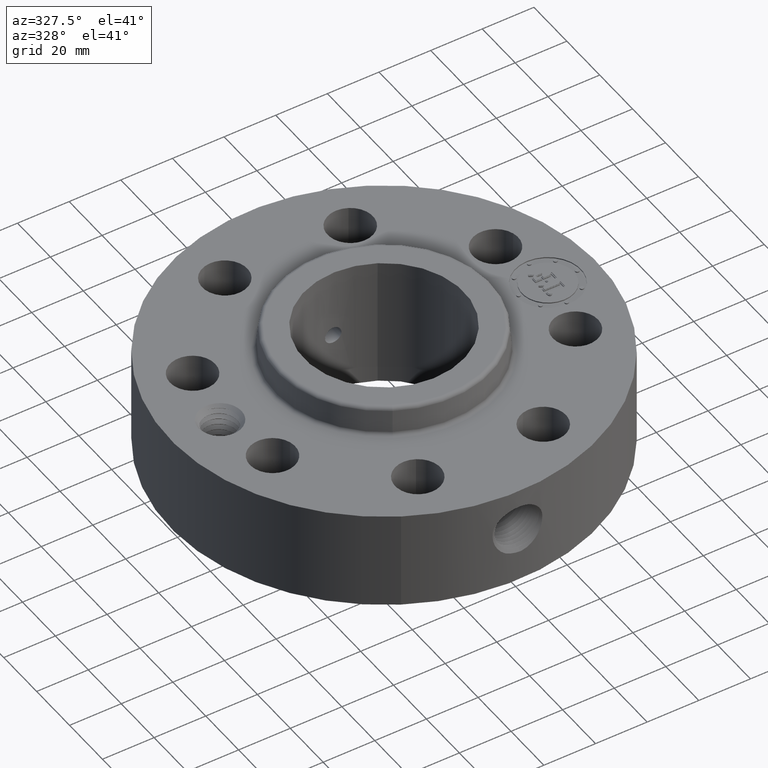
[diagram: clean part render]
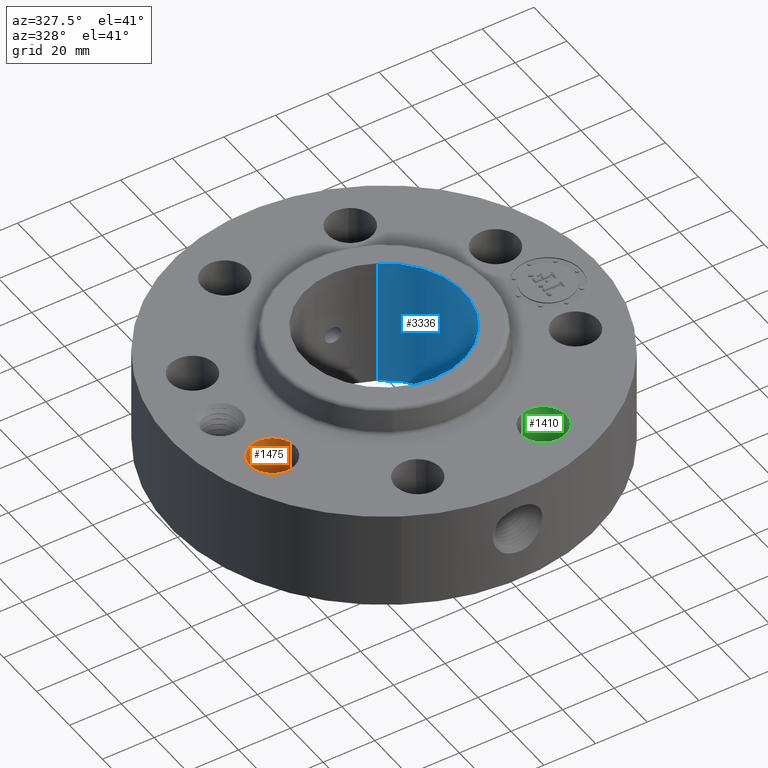
[diagram: same view with three faces highlighted in distinct colors, each labeled with its STEP entity id]
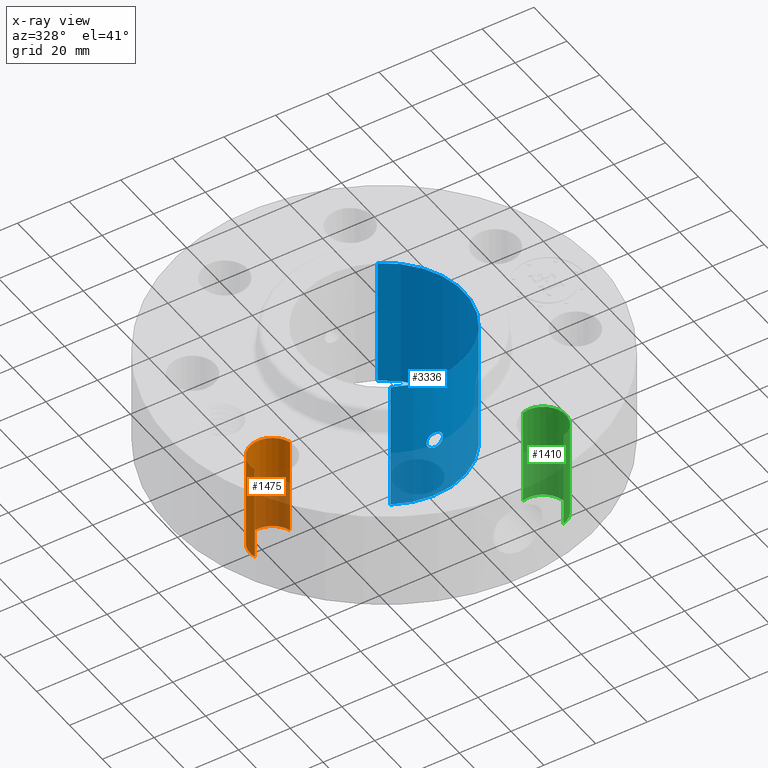
[diagram: x-ray of the same camera — body ghosted, the three highlighted faces saturated]
A machine part, auxiliary view with three faces highlighted in distinct colors.
The next image is the same camera in x-ray (body ghosted, the three faces saturated) — at least one of them is partly hidden behind the body in this view.
Their STEP definitions:

[orange] entity #1475 — the highlighted cylindrical surface (edge-blend (fillet) strip) has radius 8.763 mm, axis along (-0, 0, -1).
#319=AXIS2_PLACEMENT_3D('Circle Axis2P3D',#317,#318,$) ;
#641=AXIS2_PLACEMENT_3D('Circle Axis2P3D',#639,#640,$) ;
#1450=AXIS2_PLACEMENT_3D('Cylinder Axis2P3D',#1447,#1448,#1449) ;
#312=CARTESIAN_POINT('Vertex',(-1.97865420894,-0.859577442672,0.0600000000002)) ;
#314=CARTESIAN_POINT('Vertex',(-2.64074345363,-1.05383971916,0.0600000000002)) ;
#317=CARTESIAN_POINT('Axis2P3D Location',(-2.30969883129,-0.956708580917,0.0600000000002)) ;
#639=CARTESIAN_POINT('Axis2P3D Location',(-2.30969883129,-0.956708580917,1.56000000001)) ;
#643=CARTESIAN_POINT('Vertex',(-2.64074345363,-1.05383971916,1.56000000001)) ;
#645=CARTESIAN_POINT('Vertex',(-1.97865420894,-0.859577442672,1.56000000001)) ;
#1447=CARTESIAN_POINT('Axis2P3D Location',(-2.30969883129,-0.956708580917,1.55606299213)) ;
#1452=CARTESIAN_POINT('Line Origine',(-1.97865420894,-0.859577442672,0.810000000003)) ;
#1457=CARTESIAN_POINT('Line Origine',(-2.64074345363,-1.05383971916,0.810000000003)) ;
#318=DIRECTION('Axis2P3D Direction',(0.,0.,-0.0393700787402)) ;
#640=DIRECTION('Axis2P3D Direction',(0.,0.,-0.0393700787402)) ;
#1448=DIRECTION('Axis2P3D Direction',(-0.,0.,-0.0393700787402)) ;
#1449=DIRECTION('Axis2P3D XDirection',(-0.0377775444876,-0.0110842335096,0.)) ;
#1453=DIRECTION('Vector Direction',(0.,0.,-0.0393700787402)) ;
#1458=DIRECTION('Vector Direction',(0.,0.,-0.0393700787402)) ;
#1454=VECTOR('Line Direction',#1453,0.0393700787402) ;
#1459=VECTOR('Line Direction',#1458,0.0393700787402) ;
#1470=ORIENTED_EDGE('',*,*,#1461,.F.) ;
#1471=ORIENTED_EDGE('',*,*,#321,.T.) ;
#1472=ORIENTED_EDGE('',*,*,#1456,.T.) ;
#1473=ORIENTED_EDGE('',*,*,#647,.F.) ;
#1475=ADVANCED_FACE('PartBody',(#1474),#1451,.F.) ;
#320=CIRCLE('generated circle',#319,0.345000000001) ;
#642=CIRCLE('generated circle',#641,0.345000000001) ;
#1451=CYLINDRICAL_SURFACE('generated cylinder',#1450,0.345000000001) ;
#321=EDGE_CURVE('',#315,#313,#320,.T.) ;
#647=EDGE_CURVE('',#644,#646,#642,.T.) ;
#1456=EDGE_CURVE('',#313,#646,#1455,.F.) ;
#1461=EDGE_CURVE('',#315,#644,#1460,.F.) ;
#1469=EDGE_LOOP('',(#1470,#1471,#1472,#1473)) ;
#1474=FACE_OUTER_BOUND('',#1469,.T.) ;
#1455=LINE('Line',#1452,#1454) ;
#1460=LINE('Line',#1457,#1459) ;
#313=VERTEX_POINT('',#312) ;
#315=VERTEX_POINT('',#314) ;
#644=VERTEX_POINT('',#643) ;
#646=VERTEX_POINT('',#645) ;

[blue] entity #3336 — the highlighted cylindrical surface (partial cylindrical patch) has radius 30.988 mm, axis along (0, 0, -1).
#2504=AXIS2_PLACEMENT_3D('Circle Axis2P3D',#2502,#2503,$) ;
#3267=AXIS2_PLACEMENT_3D('Cylinder Axis2P3D',#3264,#3265,#3266) ;
#3271=AXIS2_PLACEMENT_3D('Circle Axis2P3D',#3269,#3270,$) ;
#2502=CARTESIAN_POINT('Axis2P3D Location',(0.,0.,0.)) ;
#2506=CARTESIAN_POINT('Vertex',(0.584899157099,1.07065072551,-6.2941777774E-015)) ;
#2508=CARTESIAN_POINT('Vertex',(-0.584899157099,-1.07065072551,-6.2941777774E-015)) ;
#3264=CARTESIAN_POINT('Axis2P3D Location',(0.,0.,1.)) ;
#3269=CARTESIAN_POINT('Axis2P3D Location',(0.,0.,2.00000000001)) ;
#3273=CARTESIAN_POINT('Vertex',(0.584899157099,1.07065072551,2.00000000001)) ;
#3275=CARTESIAN_POINT('Vertex',(-0.584899157099,-1.07065072551,2.00000000001)) ;
#3278=CARTESIAN_POINT('Line Origine',(0.584899157099,1.07065072551,1.)) ;
#3283=CARTESIAN_POINT('Line Origine',(-0.584899157099,-1.07065072551,1.)) ;
#3295=CARTESIAN_POINT('Control Point',(0.109697820237,-1.21505818307,0.880071807678)) ;
#3296=CARTESIAN_POINT('Control Point',(0.103060798097,-1.21565738636,0.867922820142)) ;
#3297=CARTESIAN_POINT('Control Point',(0.0947441160471,-1.21636254643,0.856696685274)) ;
#3298=CARTESIAN_POINT('Control Point',(0.0849166975474,-1.21711226691,0.846699228366)) ;
#3299=CARTESIAN_POINT('Control Point',(0.0516807941177,-1.21924473494,0.821182243796)) ;
#3300=CARTESIAN_POINT('Control Point',(0.00988752888291,-1.22047165248,0.810629364221)) ;
#3301=CARTESIAN_POINT('Control Point',(-0.0193471049442,-1.22034038384,0.81170559755)) ;
#3302=CARTESIAN_POINT('Control Point',(-0.0602691930453,-1.21881882078,0.825296047899)) ;
#3303=CARTESIAN_POINT('Control Point',(-0.091558204265,-1.21662182462,0.853201221482)) ;
#3304=CARTESIAN_POINT('Control Point',(-0.10063986189,-1.21588023015,0.863916524683)) ;
#3305=CARTESIAN_POINT('Control Point',(-0.120588705496,-1.21410136686,0.895486558274)) ;
#3306=CARTESIAN_POINT('Control Point',(-0.128081421877,-1.21324760795,0.932742917356)) ;
#3307=CARTESIAN_POINT('Control Point',(-0.127185528613,-1.21335185451,0.956760797276)) ;
#3308=CARTESIAN_POINT('Control Point',(-0.120785558709,-1.21405716044,0.979632223195)) ;
#3309=CARTESIAN_POINT('Control Point',(-0.109697820237,-1.21505818307,0.99992819233)) ;
#3310=CARTESIAN_POINT('Vertex',(0.109697820237,-1.21505818307,0.880071807678)) ;
#3312=CARTESIAN_POINT('Vertex',(-0.109697820237,-1.21505818307,0.99992819233)) ;
#3316=CARTESIAN_POINT('Control Point',(-0.109697820237,-1.21505818307,0.99992819233)) ;
#3317=CARTESIAN_POINT('Control Point',(-0.103060798097,-1.21565738636,1.01207717987)) ;
#3318=CARTESIAN_POINT('Control Point',(-0.0947441160466,-1.21636254643,1.02330331473)) ;
#3319=CARTESIAN_POINT('Control Point',(-0.084916697548,-1.21711226691,1.03330077164)) ;
#3320=CARTESIAN_POINT('Control Point',(-0.0516807941182,-1.21924473494,1.05881775621)) ;
#3321=CARTESIAN_POINT('Control Point',(-0.00988752888294,-1.22047165248,1.06937063579)) ;
#3322=CARTESIAN_POINT('Control Point',(0.0193471049444,-1.22034038384,1.06829440246)) ;
#3323=CARTESIAN_POINT('Control Point',(0.0602691930475,-1.21881882078,1.05470395211)) ;
#3324=CARTESIAN_POINT('Control Point',(0.0915582042682,-1.21662182462,1.02679877852)) ;
#3325=CARTESIAN_POINT('Control Point',(0.100639861887,-1.21588023015,1.01608347533)) ;
#3326=CARTESIAN_POINT('Control Point',(0.120588705492,-1.21410136686,0.984513441743)) ;
#3327=CARTESIAN_POINT('Control Point',(0.128081421874,-1.21324760795,0.947257082666)) ;
#3328=CARTESIAN_POINT('Control Point',(0.127185528608,-1.21335185451,0.923239202716)) ;
#3329=CARTESIAN_POINT('Control Point',(0.120785558705,-1.21405716044,0.900367776806)) ;
#3330=CARTESIAN_POINT('Control Point',(0.109697820237,-1.21505818307,0.880071807678)) ;
#2503=DIRECTION('Axis2P3D Direction',(0.,0.,-0.0393700787402)) ;
#3265=DIRECTION('Axis2P3D Direction',(0.,0.,-0.0393700787402)) ;
#3266=DIRECTION('Axis2P3D XDirection',(-0.0188750212049,-0.0345504945626,0.)) ;
#3270=DIRECTION('Axis2P3D Direction',(0.,0.,-0.0393700787402)) ;
#3279=DIRECTION('Vector Direction',(0.,0.,-0.0393700787402)) ;
#3284=DIRECTION('Vector Direction',(0.,0.,-0.0393700787402)) ;
#3280=VECTOR('Line Direction',#3279,0.0393700787402) ;
#3285=VECTOR('Line Direction',#3284,0.0393700787402) ;
#3289=ORIENTED_EDGE('',*,*,#3277,.F.) ;
#3290=ORIENTED_EDGE('',*,*,#3282,.T.) ;
#3291=ORIENTED_EDGE('',*,*,#2510,.T.) ;
#3292=ORIENTED_EDGE('',*,*,#3287,.F.) ;
#3333=ORIENTED_EDGE('',*,*,#3314,.F.) ;
#3334=ORIENTED_EDGE('',*,*,#3331,.F.) ;
#3335=FACE_BOUND('',#3332,.T.) ;
#3336=ADVANCED_FACE('PartBody',(#3293,#3335),#3268,.F.) ;
#3294=B_SPLINE_CURVE_WITH_KNOTS('',5,(#3295,#3296,#3297,#3298,#3299,#3300,#3301,#3302,#3303,#3304,#3305,#3306,#3307,#3308,#3309),.UNSPECIFIED.,.F.,.U.,(6,3,3,3,6),(0.,2.4887269812,7.46422653684,9.95758842031,14.1152291987),.UNSPECIFIED.) ;
#3315=B_SPLINE_CURVE_WITH_KNOTS('',5,(#3316,#3317,#3318,#3319,#3320,#3321,#3322,#3323,#3324,#3325,#3326,#3327,#3328,#3329,#3330),.UNSPECIFIED.,.F.,.U.,(6,3,3,3,6),(0.,2.48872698128,7.46422653689,9.95758842075,14.1152291977),.UNSPECIFIED.) ;
#2505=CIRCLE('generated circle',#2504,1.22) ;
#3272=CIRCLE('generated circle',#3271,1.22) ;
#3268=CYLINDRICAL_SURFACE('generated cylinder',#3267,1.22) ;
#2510=EDGE_CURVE('',#2507,#2509,#2505,.T.) ;
#3277=EDGE_CURVE('',#3274,#3276,#3272,.T.) ;
#3282=EDGE_CURVE('',#3274,#2507,#3281,.T.) ;
#3287=EDGE_CURVE('',#3276,#2509,#3286,.T.) ;
#3314=EDGE_CURVE('',#3311,#3313,#3294,.T.) ;
#3331=EDGE_CURVE('',#3313,#3311,#3315,.T.) ;
#3288=EDGE_LOOP('',(#3289,#3290,#3291,#3292)) ;
#3332=EDGE_LOOP('',(#3333,#3334)) ;
#3293=FACE_OUTER_BOUND('',#3288,.T.) ;
#3281=LINE('Line',#3278,#3280) ;
#3286=LINE('Line',#3283,#3285) ;
#2507=VERTEX_POINT('',#2506) ;
#2509=VERTEX_POINT('',#2508) ;
#3274=VERTEX_POINT('',#3273) ;
#3276=VERTEX_POINT('',#3275) ;
#3311=VERTEX_POINT('',#3310) ;
#3313=VERTEX_POINT('',#3312) ;

[green] entity #1410 — the highlighted cylindrical surface (edge-blend (fillet) strip) has radius 8.763 mm, axis along (0, -0, -1).
#274=AXIS2_PLACEMENT_3D('Circle Axis2P3D',#272,#273,$) ;
#614=AXIS2_PLACEMENT_3D('Circle Axis2P3D',#612,#613,$) ;
#1392=AXIS2_PLACEMENT_3D('Cylinder Axis2P3D',#1389,#1390,#1391) ;
#272=CARTESIAN_POINT('Axis2P3D Location',(0.956708580917,-2.30969883129,0.0600000000002)) ;
#276=CARTESIAN_POINT('Vertex',(0.859577442672,-1.97865420894,0.0600000000002)) ;
#278=CARTESIAN_POINT('Vertex',(1.05383971916,-2.64074345363,0.0600000000002)) ;
#607=CARTESIAN_POINT('Vertex',(1.05383971916,-2.64074345363,1.56000000001)) ;
#609=CARTESIAN_POINT('Vertex',(0.859577442672,-1.97865420894,1.56000000001)) ;
#612=CARTESIAN_POINT('Axis2P3D Location',(0.956708580917,-2.30969883129,1.56000000001)) ;
#1389=CARTESIAN_POINT('Axis2P3D Location',(0.956708580917,-2.30969883129,1.55606299213)) ;
#1394=CARTESIAN_POINT('Line Origine',(0.859577442672,-1.97865420894,0.810000000003)) ;
#1399=CARTESIAN_POINT('Line Origine',(1.05383971916,-2.64074345363,0.810000000003)) ;
#273=DIRECTION('Axis2P3D Direction',(0.,0.,-0.0393700787402)) ;
#613=DIRECTION('Axis2P3D Direction',(0.,0.,-0.0393700787402)) ;
#1390=DIRECTION('Axis2P3D Direction',(0.,-0.,-0.0393700787402)) ;
#1391=DIRECTION('Axis2P3D XDirection',(0.0110842335096,-0.0377775444876,0.)) ;
#1395=DIRECTION('Vector Direction',(0.,0.,-0.0393700787402)) ;
#1400=DIRECTION('Vector Direction',(0.,0.,-0.0393700787402)) ;
#1396=VECTOR('Line Direction',#1395,0.0393700787402) ;
#1401=VECTOR('Line Direction',#1400,0.0393700787402) ;
#1405=ORIENTED_EDGE('',*,*,#1398,.F.) ;
#1406=ORIENTED_EDGE('',*,*,#280,.T.) ;
#1407=ORIENTED_EDGE('',*,*,#1403,.T.) ;
#1408=ORIENTED_EDGE('',*,*,#616,.F.) ;
#1410=ADVANCED_FACE('PartBody',(#1409),#1393,.F.) ;
#275=CIRCLE('generated circle',#274,0.345000000001) ;
#615=CIRCLE('generated circle',#614,0.345000000001) ;
#1393=CYLINDRICAL_SURFACE('generated cylinder',#1392,0.345000000001) ;
#280=EDGE_CURVE('',#277,#279,#275,.T.) ;
#616=EDGE_CURVE('',#610,#608,#615,.T.) ;
#1398=EDGE_CURVE('',#277,#610,#1397,.F.) ;
#1403=EDGE_CURVE('',#279,#608,#1402,.F.) ;
#1404=EDGE_LOOP('',(#1405,#1406,#1407,#1408)) ;
#1409=FACE_OUTER_BOUND('',#1404,.T.) ;
#1397=LINE('Line',#1394,#1396) ;
#1402=LINE('Line',#1399,#1401) ;
#277=VERTEX_POINT('',#276) ;
#279=VERTEX_POINT('',#278) ;
#608=VERTEX_POINT('',#607) ;
#610=VERTEX_POINT('',#609) ;